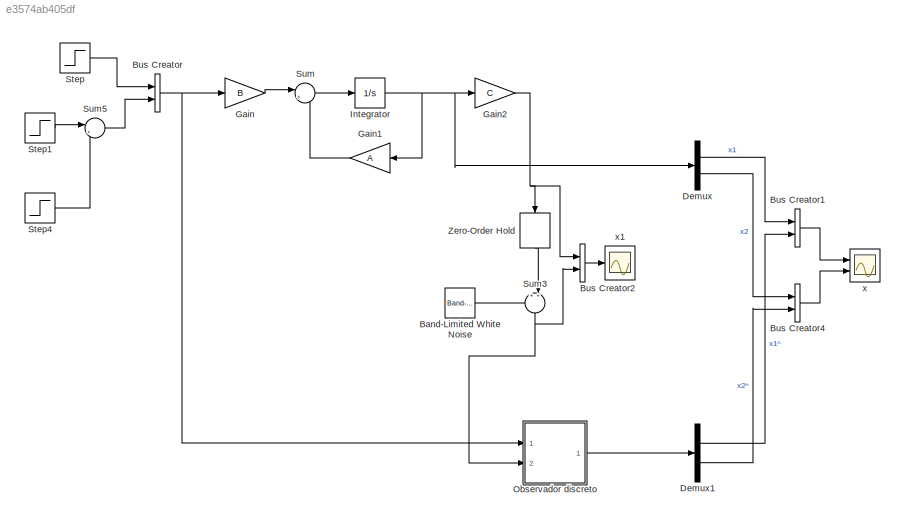
MODEL slx_e3574ab405df
KIND model
BLOCK [Reference] Band-Limited White Noise  REF=simulink/Sources/Band-Limited
White Noise
  Cov = [0.0005]
  Ports = [0, 1]
  SourceBlock = simulink/Sources/Band-Limited\nWhite Noise
  SourceType = Band-Limited White Noise.
  Ts = Ts
  VectorParams1D = on
  seed = [23341]
BLOCK [BusCreator] Bus Creator
  DisplayOption = bar
  Inputs = 2
  Ports = [2, 1]
BLOCK [BusCreator] Bus Creator1
  DisplayOption = bar
  Inputs = 2
  Ports = [2, 1]
BLOCK [BusCreator] Bus Creator2
  DisplayOption = bar
  Inputs = 2
  Ports = [2, 1]
BLOCK [BusCreator] Bus Creator4
  DisplayOption = bar
  Inputs = 2
  Ports = [2, 1]
BLOCK [Demux] Demux
  DisplayOption = bar
  Outputs = 2
  Ports = [1, 2]
BLOCK [Demux] Demux1
  DisplayOption = bar
  Outputs = 2
  Ports = [1, 2]
BLOCK [Gain] Gain
  Gain = B
  Multiplication = Matrix(K*u)
  OutDataTypeStr = Inherit: Inherit via internal rule
  ParamDataTypeStr = Inherit: Inherit via internal rule
  SaturateOnIntegerOverflow = off
BLOCK [Gain] Gain1
  Gain = A
  Multiplication = Matrix(K*u)
  OutDataTypeStr = Inherit: Inherit via internal rule
  ParamDataTypeStr = Inherit: Inherit via internal rule
  SaturateOnIntegerOverflow = off
BLOCK [Gain] Gain2
  Gain = C
  Multiplication = Matrix(K*u)
  OutDataTypeStr = Inherit: Inherit via internal rule
  ParamDataTypeStr = Inherit: Inherit via internal rule
  SaturateOnIntegerOverflow = off
BLOCK [Integrator] Integrator
  Ports = [1, 1]
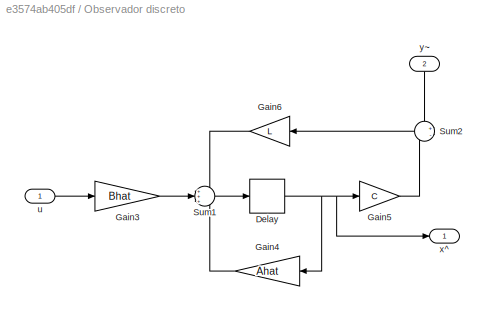
BLOCK [SubSystem] Observador discreto
  FunctionWithSeparateData = off
  MaskHideContents = off
  MinAlgLoopOccurrences = off
  Opaque = off
  Ports = [2, 1]
  PropExecContextOutsideSubsystem = off
  RTWSystemCode = Auto
  RequestExecContextInheritance = off
BLOCK [Delay] Observador discreto/Delay
  DelayLength = 1
  InputPortMap = u0
  Ports = [1, 1]
  SampleTime = Ts
BLOCK [Gain] Observador discreto/Gain3
  Gain = Bhat
  Multiplication = Matrix(K*u)
  OutDataTypeStr = Inherit: Inherit via internal rule
  ParamDataTypeStr = Inherit: Inherit via internal rule
  SaturateOnIntegerOverflow = off
BLOCK [Gain] Observador discreto/Gain4
  Gain = Ahat
  Multiplication = Matrix(K*u)
  OutDataTypeStr = Inherit: Inherit via internal rule
  ParamDataTypeStr = Inherit: Inherit via internal rule
  SaturateOnIntegerOverflow = off
BLOCK [Gain] Observador discreto/Gain5
  Gain = C
  Multiplication = Matrix(K*u)
  OutDataTypeStr = Inherit: Inherit via internal rule
  ParamDataTypeStr = Inherit: Inherit via internal rule
  SaturateOnIntegerOverflow = off
BLOCK [Gain] Observador discreto/Gain6
  Gain = L
  Multiplication = Matrix(K*u)
  OutDataTypeStr = Inherit: Inherit via internal rule
  ParamDataTypeStr = Inherit: Inherit via internal rule
  SaturateOnIntegerOverflow = off
BLOCK [Sum] Observador discreto/Sum1
  IconShape = round
  InputSameDT = off
  Inputs = +++
  OutDataTypeStr = Inherit: Inherit via internal rule
  Ports = [3, 1]
  SaturateOnIntegerOverflow = off
BLOCK [Sum] Observador discreto/Sum2
  IconShape = round
  InputSameDT = off
  Inputs = +-
  OutDataTypeStr = Inherit: Inherit via internal rule
  Ports = [2, 1]
  SaturateOnIntegerOverflow = off
BLOCK [Inport] Observador discreto/u
  IconDisplay = Port number
BLOCK [Outport] Observador discreto/x^
  IconDisplay = Port number
BLOCK [Inport] Observador discreto/y~
  IconDisplay = Port number
  Port = 2
BLOCK [Step] Step
  SampleTime = 0
  Time = 0
BLOCK [Step] Step1
  After = 10
  SampleTime = 0
BLOCK [Step] Step4
  After = -20
  SampleTime = 0
  Time = 4
BLOCK [Sum] Sum
  IconShape = round
  InputSameDT = off
  Inputs = |++
  OutDataTypeStr = Inherit: Inherit via internal rule
  Ports = [2, 1]
  SaturateOnIntegerOverflow = off
BLOCK [Sum] Sum3
  IconShape = round
  InputSameDT = off
  Inputs = ++|
  OutDataTypeStr = Inherit: Inherit via internal rule
  Ports = [2, 1]
  SaturateOnIntegerOverflow = off
BLOCK [Sum] Sum5
  IconShape = round
  InputSameDT = off
  Inputs = |++
  OutDataTypeStr = Inherit: Inherit via internal rule
  Ports = [2, 1]
  SaturateOnIntegerOverflow = off
BLOCK [ZeroOrderHold] Zero-Order Hold
  SampleTime = Ts
BLOCK [Scope] x
  DataFormat = StructureWithTime
  Floating = off
  LegendLocations = 0.93427     0.90978    0.046875     0.04439\n0.93427     0.43876    0.046875     0.04439
  NumInputPorts = 2
  Ports = [2]
  SampleTime = 0
  SaveName = ScopeData2
  ShowLegends = on
  YMax = 5~5
  YMin = -5~-5
BLOCK [Scope] x1
  DataFormat = StructureWithTime
  Floating = off
  LegendLocations = 0.9274     0.90978     0.05375     0.04439
  NumInputPorts = 1
  Ports = [1]
  SampleTime = 0
  ShowLegends = on
LINE Band-Limited White Noise:1 -> Sum3:1
LINE Bus Creator1:1 -> x:1
LINE Bus Creator2:1 -> x1:1
LINE Bus Creator4:1 -> x:2
NET Bus Creator:1 -> Gain:1, Observador discreto:1
LINE Demux1:1 -> Bus Creator1:2
LINE Demux1:2 -> Bus Creator4:2
LINE Demux:1 -> Bus Creator1:1
LINE Demux:2 -> Bus Creator4:1
LINE Gain1:1 -> Sum:2
NET Gain2:1 -> Bus Creator2:1, Zero-Order Hold:1
LINE Gain:1 -> Sum:1
NET Integrator:1 -> Demux:1, Gain1:1, Gain2:1
NET Observador discreto/Delay:1 -> Observador discreto/Gain4:1, Observador discreto/Gain5:1, Observador discreto/x^:1
LINE Observador discreto/Gain3:1 -> Observador discreto/Sum1:2
LINE Observador discreto/Gain4:1 -> Observador discreto/Sum1:3
LINE Observador discreto/Gain5:1 -> Observador discreto/Sum2:2
LINE Observador discreto/Gain6:1 -> Observador discreto/Sum1:1
LINE Observador discreto/Sum1:1 -> Observador discreto/Delay:1
LINE Observador discreto/Sum2:1 -> Observador discreto/Gain6:1
LINE Observador discreto/u:1 -> Observador discreto/Gain3:1
LINE Observador discreto/y~:1 -> Observador discreto/Sum2:1
LINE Observador discreto:1 -> Demux1:1
LINE Step1:1 -> Sum5:1
LINE Step4:1 -> Sum5:2
LINE Step:1 -> Bus Creator:1
NET Sum3:1 -> Bus Creator2:2, Observador discreto:2
LINE Sum5:1 -> Bus Creator:2
LINE Sum:1 -> Integrator:1
LINE Zero-Order Hold:1 -> Sum3:2
note: NET lines group one-source signal fan-out (src -> all destinations, sorted); 1:1 wires keep LINE
